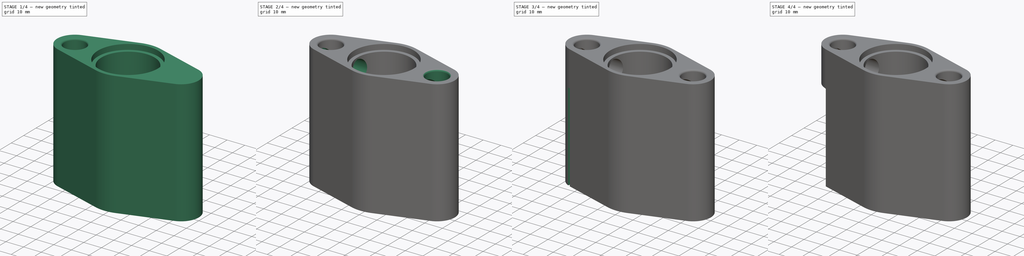
[diagram: build sequence overview — one tinted view per stage of 4, left to right]
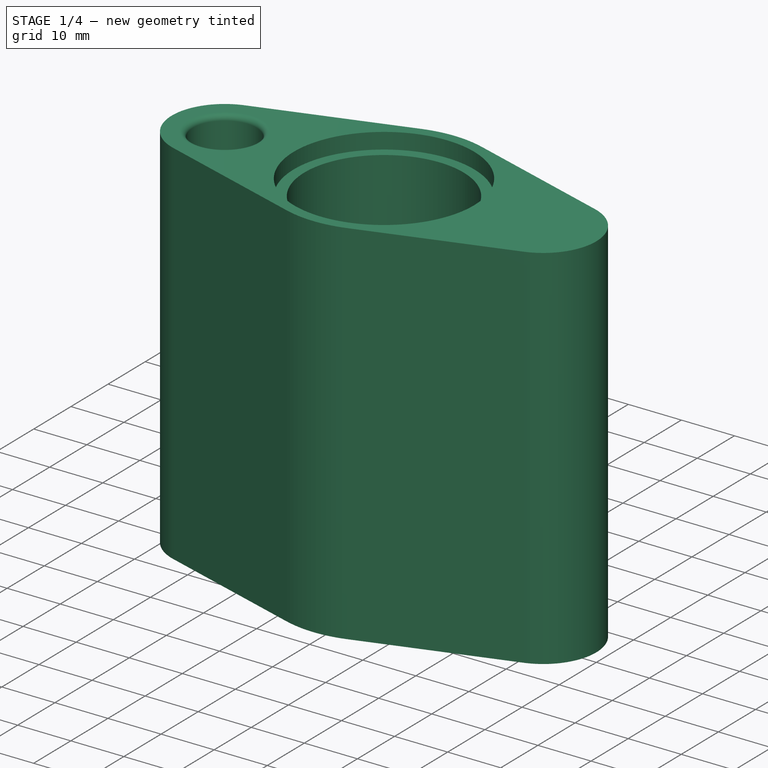
[diagram: stage 1 of 4 — iso view after this stage's code; geometry added in this stage tinted green]
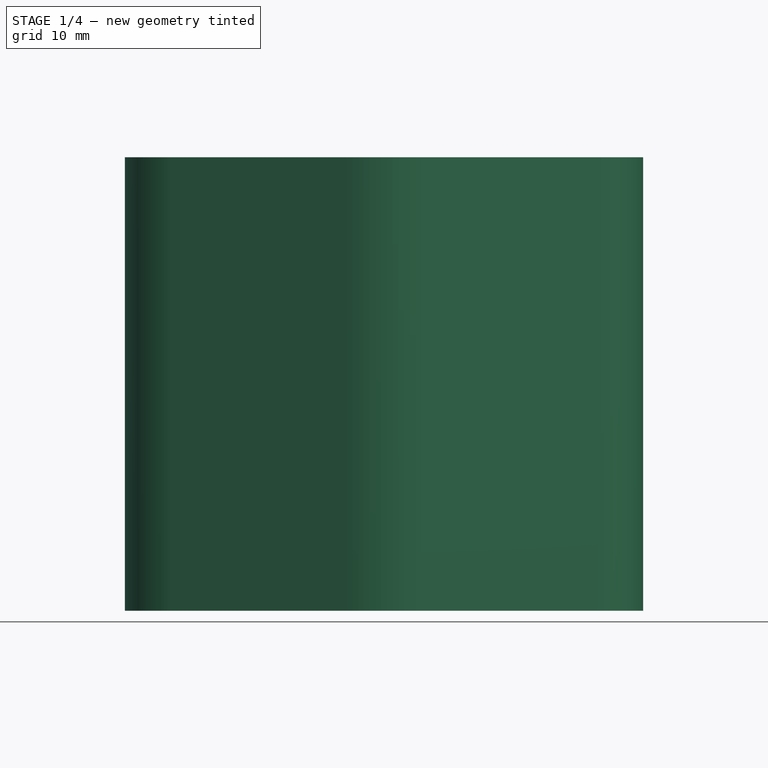
[diagram: stage 1 of 4 — front view after this stage's code; geometry added in this stage tinted green]
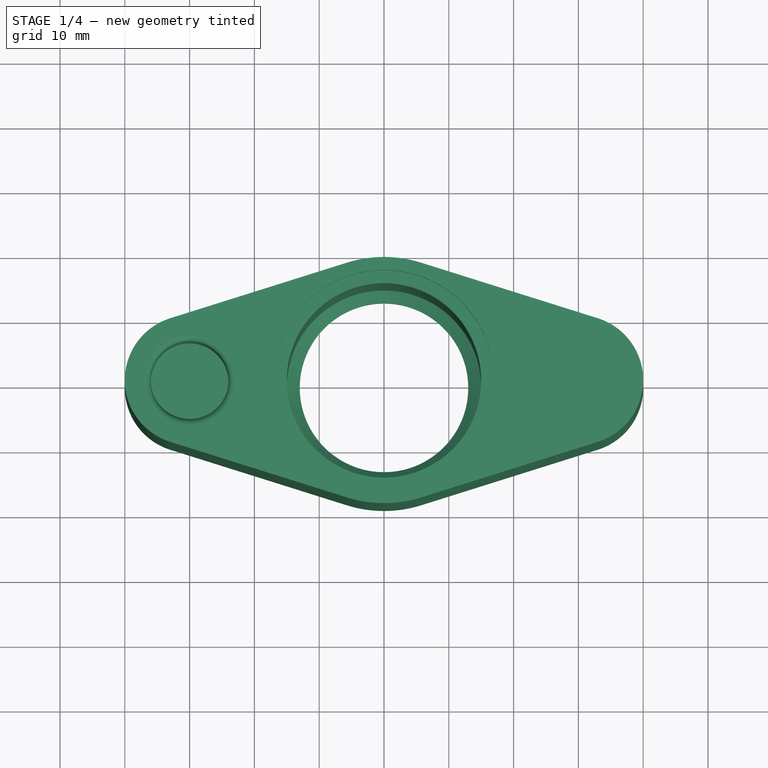
[diagram: stage 1 of 4 — top view after this stage's code; geometry added in this stage tinted green]
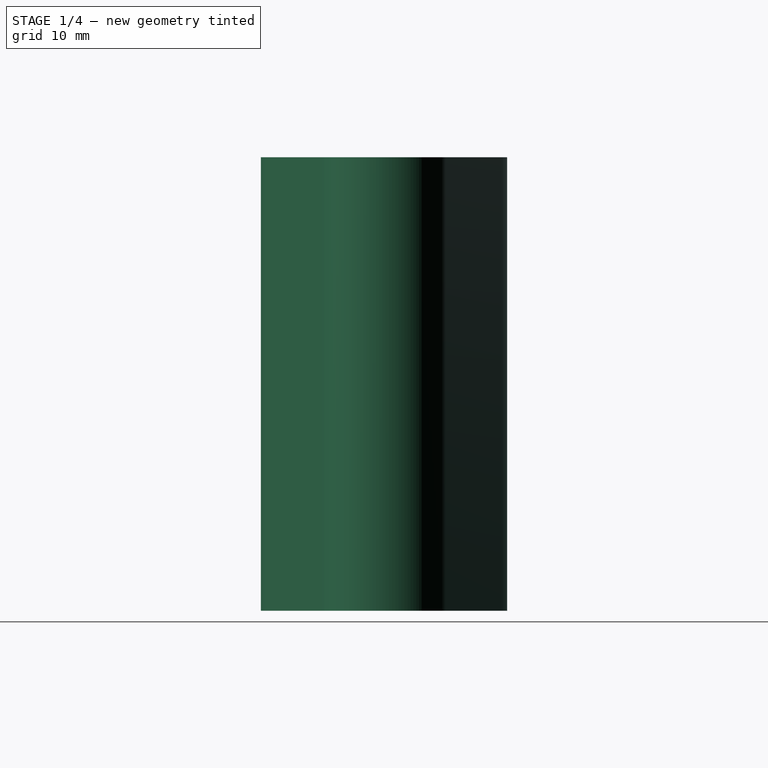
[diagram: stage 1 of 4 — right view after this stage's code; geometry added in this stage tinted green]
FCSTD DOCUMENT  (FreeCAD 0.19R24291 (Git))
Label: _Padlock
License: Creative Commons Attribution
LicenseURL: http://creativecommons.org/licenses/by/4.0/
objects: Sketcher::SketchObject×8, Part::Feature×7, PartDesign::Pocket×4, PartDesign::Groove×3, PartDesign::Chamfer×2, PartDesign::Pad×1, PartDesign::LinearPattern×1, PartDesign::Body×1
note: 37 computed .brp shape members not serialized (recipe doc carries the construction recipe); baked Part::Feature solids carry a one-line shape summary decoded from their .brp

FEATURE [Part::Feature] Body001_solid  label="Body (Solid)"
  shape: bbox 79.93 x 38 x 70 mm, 4696 faces (baked)
FEATURE [Part::Feature] Lock_Pin001_solid  label="Lock_Pin_001"
  Placement = pos=(-9.4,0,60) rot=(0,-1,0;1.5708rad)
  shape: bbox 18.5 x 10.97 x 18 mm, 1020 faces (baked)
FEATURE [Part::Feature] Lock_Pin001_solid001  label="Lock_Pin_002"
  Placement = pos=(9.4,-2e-15,60) rot=(0.707107,0,0.707107;3.14159rad)
  shape: bbox 18.5 x 10.97 x 18 mm, 1020 faces (baked)
FEATURE [Part::Feature] Plug_Autolock001_solid  label="Plug_Autolock"
  Placement = pos=(0,0,0) rot=(0,0,-1;1.5708rad)
  shape: bbox 28.5 x 28.42 x 54 mm, 2278 faces (baked)
FEATURE [Part::Feature] Lock001_solid  label="Lock001 (Solid)"
  Placement = pos=(0,5.5,78.5) rot=(1,0,0;1.5708rad)
  shape: bbox 70.87 x 11 x 100.4 mm, 1836 faces (baked)
FEATURE [Part::Feature] Lid001001__Meshed_001_solid  label="Lid (Solid)"
  Placement = pos=(0,9e-15,70) rot=(1,0,0;3.14159rad)
  shape: bbox 32.94 x 33 x 10 mm, 7662 faces (baked)
FEATURE [Part::Feature] Top001_solid  label="Top"
  Placement = pos=(-29.7,-7e-15,0) rot=(0,0,1;1.5708rad)
  shape: bbox 14.27 x 29.58 x 50 mm, 294 faces (baked)
FEATURE [Sketcher::SketchObject] Sketch
  FullyConstrained = true
  MapMode = 5
  Support = -> [XY_Plane]
  sketch-geometry (8):
    g0: LineSegment StartX=-33 StartY=9.53939 StartZ=0 EndX=-5.7 EndY=18.1248 EndZ=0
    g1: ArcOfCircle CenterX=0 CenterY=0 CenterZ=0 NormalX=0 NormalY=0 NormalZ=1 AngleXU=0 Radius=19 StartAngle=1.2661 EndAngle=1.87549
    g2: LineSegment StartX=5.7 StartY=18.1248 StartZ=0 EndX=33 EndY=9.53939 EndZ=0
    g3: ArcOfCircle CenterX=30 CenterY=0 CenterZ=0 NormalX=0 NormalY=0 NormalZ=1 AngleXU=0 Radius=10 StartAngle=5.01708 EndAngle=7.54929
    g4: LineSegment StartX=33 StartY=-9.53939 StartZ=0 EndX=5.7 EndY=-18.1248 EndZ=0
    g5: ArcOfCircle CenterX=0 CenterY=0 CenterZ=0 NormalX=0 NormalY=0 NormalZ=1 AngleXU=0 Radius=19 StartAngle=4.4077 EndAngle=5.01708
    g6: LineSegment StartX=-5.7 StartY=-18.1248 StartZ=0 EndX=-33 EndY=-9.53939 EndZ=0
    g7: ArcOfCircle CenterX=-30 CenterY=0 CenterZ=0 NormalX=0 NormalY=0 NormalZ=1 AngleXU=0 Radius=10 StartAngle=1.87549 EndAngle=4.4077
  constraints (18):
    c: Tangent(g0,g1) = 1.5708
    c: Tangent(g1,g2) = 1.5708
    c: Tangent(g2,g3) = 1.5708
    c: Tangent(g3,g4) = 1.5708
    c: Tangent(g4,g5) = 1.5708
    c: Tangent(g5,g6) = 1.5708
    c: Tangent(g6,g7) = 1.5708
    c: Coincident(g7,g0)
    c: Tangent(g0,g7)
    c: Coincident(g5,g-1)
    c: Coincident(g1,g5)
    c: Symmetric(g3,g7,g-2)
    c: PointOnObject(g3,g-1)
    c: Equal(g3,g7)
    c: Equal(g5,g1)
    c: Radius(g3) = 10
    c: Radius(g1) = 19
    c: DistanceX(g7,g3) = 60
FEATURE [PartDesign::Pad] Pad  label="BaseBody"
  AllowMultiFace = false
  Direction = (1,1,1)
  Length = 70
  Length2 = 100
  Profile = -> Sketch
  Type = 0
FEATURE [Sketcher::SketchObject] Sketch001
  FullyConstrained = true
  MapMode = 5
  Placement = pos=(0,0,0) rot=(1,0,0;1.5708rad)
  Support = -> [XZ_Plane]
  expr: Constraints[2] = Pad.Length
  sketch-geometry (7):
    g0: LineSegment StartX=0 StartY=70 StartZ=0 EndX=17 EndY=70 EndZ=0
    g1: LineSegment StartX=17 StartY=67 StartZ=0 EndX=15 EndY=67 EndZ=0
    g2: LineSegment StartX=15 StartY=67 StartZ=0 EndX=15 EndY=2 EndZ=0
    g3: LineSegment StartX=15 StartY=2 StartZ=0 EndX=13 EndY=0 EndZ=0
    g4: LineSegment StartX=13 StartY=0 StartZ=0 EndX=0 EndY=0 EndZ=0
    g5: LineSegment StartX=0 StartY=0 StartZ=0 EndX=0 EndY=70 EndZ=0
    g6: LineSegment StartX=17 StartY=67 StartZ=0 EndX=17 EndY=70 EndZ=0
  constraints (20):
    c: PointOnObject(g0,g-2)
    c: Horizontal(g0)
    c: DistanceY(g-1,g0) = 70
    c: Horizontal(g1)
    c: Coincident(g1,g2)
    c: Vertical(g2)
    c: Coincident(g2,g3)
    c: PointOnObject(g3,g-1)
    c: Coincident(g3,g4)
    c: Coincident(g4,g-1)
    c: Coincident(g4,g5)
    c: Coincident(g5,g0)
    c: DistanceY(g1,g0) = 3
    c: DistanceX(g0,g1) = 17
    c: Vertical(g6)
    c: Angle(g3,g4) = 2.35619
    c: DistanceY(g3,g2) = 2
    c: DistanceX(g4,g2) = 15
    c: Coincident(g6,g1)
    c: Coincident(g6,g0)
FEATURE [PartDesign::Groove] Groove  label="CentralBore"
  AllowMultiFace = false
  Angle = 360
  Axis = (0,-2e-16,1)
  Base = (0,0,0)
  BaseFeature = -> Pad
  Profile = -> Sketch001
  ReferenceAxis = -> Sketch001 [V_Axis]
FEATURE [Sketcher::SketchObject] Sketch002
  FullyConstrained = true
  MapMode = 5
  Placement = pos=(0,0,0) rot=(1,0,0;1.5708rad)
  Support = -> [XZ_Plane]
  expr: Constraints[7] = Sketch.Constraints[17] / 2
  expr: Constraints[6] = Pad.Length
  sketch-geometry (5):
    g0: LineSegment StartX=-30 StartY=70 StartZ=0 EndX=-30 EndY=50 EndZ=0
    g1: LineSegment StartX=-30 StartY=50 StartZ=0 EndX=-24 EndY=50 EndZ=0
    g2: LineSegment StartX=-24 StartY=50 StartZ=0 EndX=-24 EndY=69 EndZ=0
    g3: ArcOfCircle CenterX=-23 CenterY=69 CenterZ=0 NormalX=0 NormalY=0 NormalZ=1 AngleXU=0 Radius=1 StartAngle=1.5708 EndAngle=3.14159
    g4: LineSegment StartX=-23 StartY=70 StartZ=0 EndX=-30 EndY=70 EndZ=0
  constraints (14):
    c: Vertical(g0)
    c: Coincident(g0,g1)
    c: Coincident(g1,g2)
    c: Vertical(g2)
    c: Tangent(g2,g3) = 1.5708
    c: Coincident(g4,g0)
    c: DistanceY(g-1,g0) = 70
    c: DistanceX(g0,g-1) = 30
    c: Horizontal(g1)
    c: DistanceY(g0,g0) = 20
    c: Tangent(g3,g4) = -1.5708
    c: Horizontal(g4)
    c: DistanceX(g0,g2) = 6
    c: Radius(g3) = 1
FEATURE [PartDesign::Groove] Groove001  label="ShakleBoreShort"
  AllowMultiFace = false
  Angle = 360
  Axis = (0,2e-16,-1)
  Base = (-30,-1.55e-14,70)
  BaseFeature = -> Groove
  Profile = -> Sketch002
  ReferenceAxis = -> Sketch002 [Edge1]
  Reversed = true
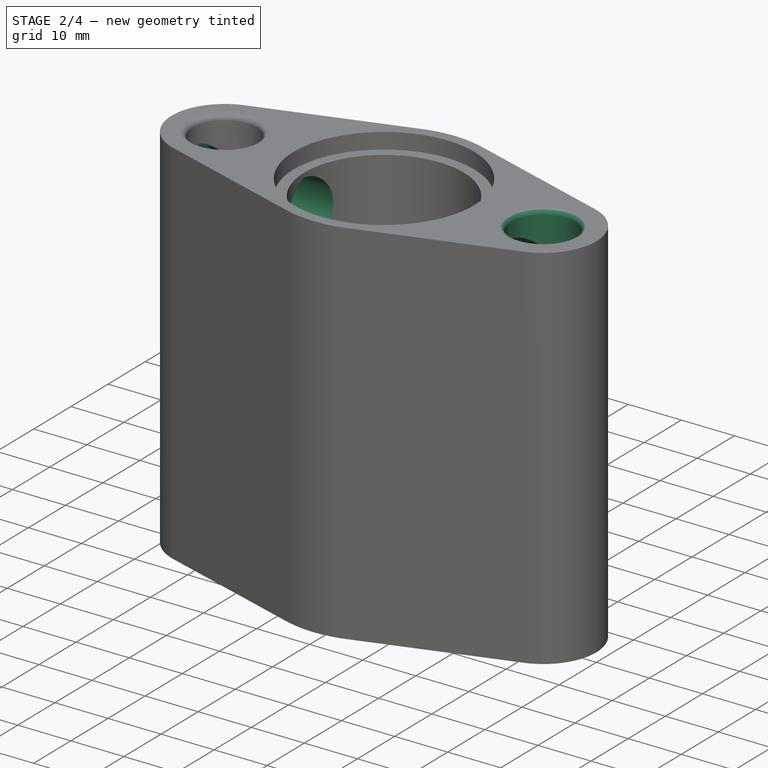
[diagram: stage 2 of 4 — iso view after this stage's code; geometry added in this stage tinted green]
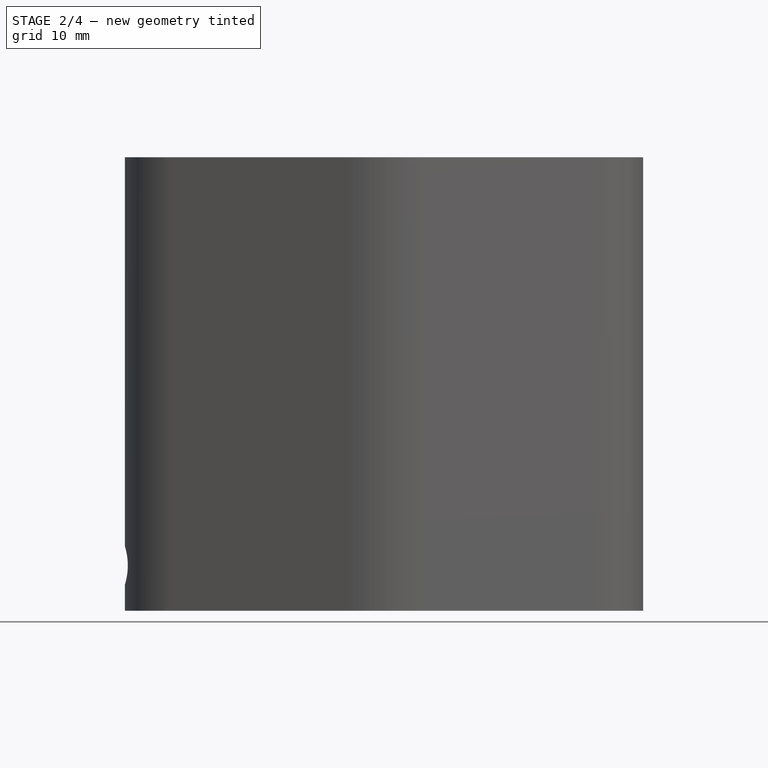
[diagram: stage 2 of 4 — front view after this stage's code; geometry added in this stage tinted green]
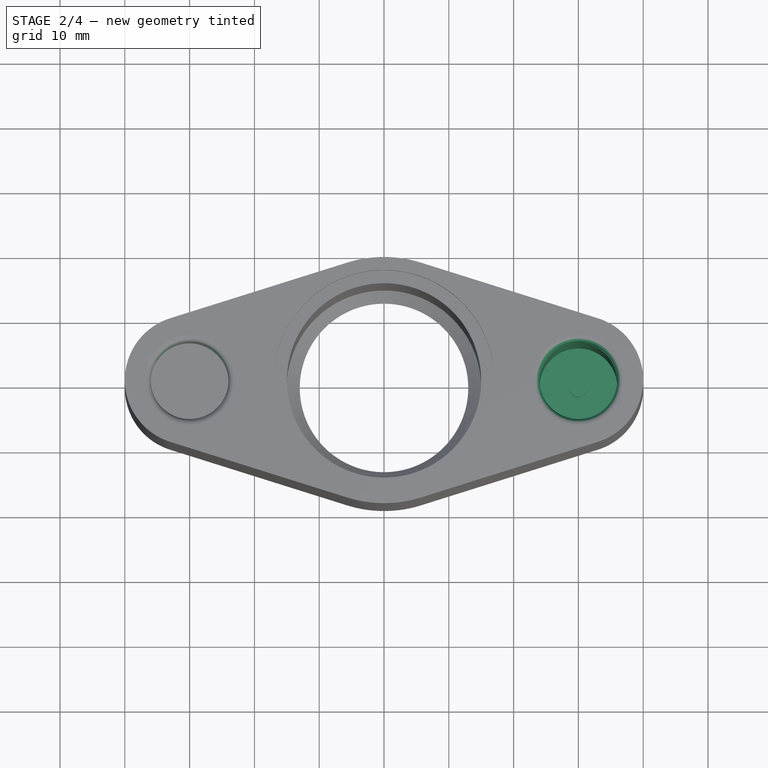
[diagram: stage 2 of 4 — top view after this stage's code; geometry added in this stage tinted green]
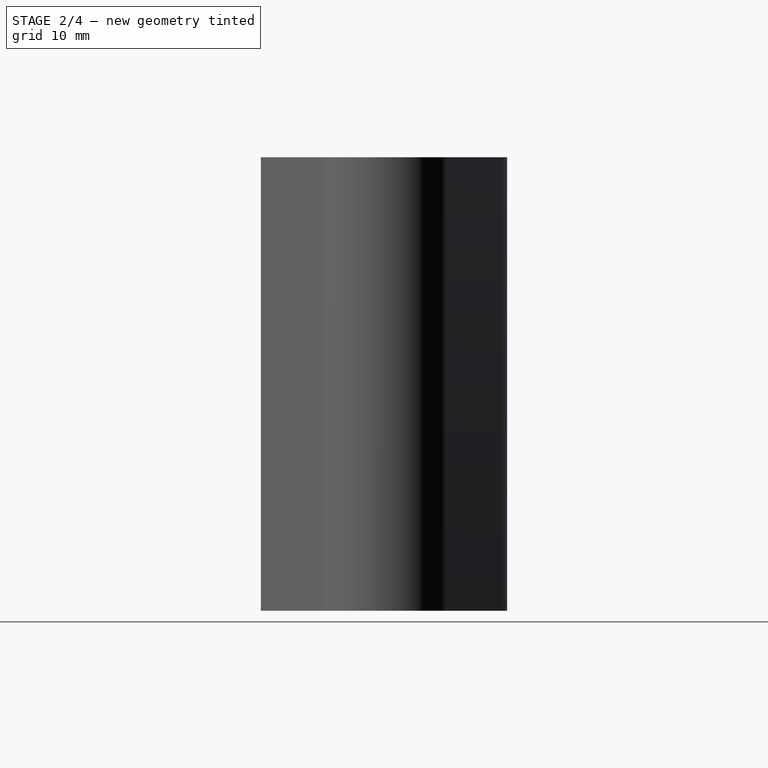
[diagram: stage 2 of 4 — right view after this stage's code; geometry added in this stage tinted green]
FEATURE [Sketcher::SketchObject] Sketch003
  FullyConstrained = true
  MapMode = 5
  Placement = pos=(0,0,0) rot=(1,0,0;1.5708rad)
  Support = -> [XZ_Plane]
  expr: Constraints[16] = Pad.Length
  expr: Constraints[15] = Sketch.Constraints[17] / 2
  sketch-geometry (7):
    g0: LineSegment StartX=36 StartY=69 StartZ=0 EndX=36 EndY=5 EndZ=0
    g1: LineSegment StartX=36 StartY=5 StartZ=0 EndX=31.5 EndY=5 EndZ=0
    g2: LineSegment StartX=31.5 StartY=5 StartZ=0 EndX=31.5 EndY=8 EndZ=0
    g3: LineSegment StartX=31.5 StartY=8 StartZ=0 EndX=30 EndY=8 EndZ=0
    g4: LineSegment StartX=30 StartY=8 StartZ=0 EndX=30 EndY=70 EndZ=0
    g5: LineSegment StartX=30 StartY=70 StartZ=0 EndX=37 EndY=70 EndZ=0
    g6: ArcOfCircle CenterX=37 CenterY=69 CenterZ=0 NormalX=0 NormalY=0 NormalZ=1 AngleXU=0 Radius=1 StartAngle=1.5708 EndAngle=3.14159
  constraints (22):
    c: Vertical(g0)
    c: Coincident(g0,g1)
    c: Horizontal(g1)
    c: Coincident(g1,g2)
    c: Vertical(g2)
    c: Coincident(g2,g3)
    c: Horizontal(g3)
    c: Coincident(g3,g4)
    c: Vertical(g4)
    c: Coincident(g4,g5)
    c: Horizontal(g5)
    c: Coincident(g6,g5)
    c: Coincident(g6,g0)
    c: Tangent(g6,g5)
    c: Tangent(g6,g0)
    c: DistanceX(g-1,g4) = 30
    c: DistanceY(g-1,g4) = 70
    c: Radius(g6) = 1
    c: DistanceX(g3,g0) = 6
    c: DistanceY(g2,g2) = 3
    c: DistanceX(g3,g1) = 1.5
    c: DistanceY(g0,g5) = 65
FEATURE [PartDesign::Groove] Groove002  label="ShakleBoreLong"
  AllowMultiFace = false
  Angle = 360
  Axis = (0,-2e-16,1)
  Base = (30,-1.8e-15,8)
  BaseFeature = -> Groove001
  Profile = -> Sketch003
  ReferenceAxis = -> Sketch003 [Edge5]
FEATURE [Sketcher::SketchObject] Sketch004
  FullyConstrained = true
  MapMode = 5
  Placement = pos=(0,0,0) rot=(0.57735,0.57735,0.57735;2.0944rad)
  Support = -> [YZ_Plane]
  expr: Constraints[18] = Constraints[6]
  expr: Constraints[17] = Constraints[1] / 2 + Constraints[6] / 2
  expr: Constraints[5] = Constraints[1] / 2 + Constraints[6] / 2
  sketch-geometry (6):
    g0: ArcOfCircle CenterX=0 CenterY=60 CenterZ=0 NormalX=0 NormalY=0 NormalZ=1 AngleXU=0 Radius=5.999 StartAngle=1.82974 EndAngle=4.45345
    g1: LineSegment StartX=0 StartY=66.199 StartZ=0 EndX=-1.5361 EndY=65.799 EndZ=0
    g2: LineSegment StartX=0 StartY=66.199 StartZ=0 EndX=1.5361 EndY=65.799 EndZ=0
    g3: LineSegment StartX=0 StartY=53.801 StartZ=0 EndX=-1.5361 EndY=54.201 EndZ=0
    g4: LineSegment StartX=0 StartY=53.801 StartZ=0 EndX=1.5361 EndY=54.201 EndZ=0
    g5: ArcOfCircle CenterX=0 CenterY=60 CenterZ=0 NormalX=0 NormalY=0 NormalZ=1 AngleXU=0 Radius=5.999 StartAngle=4.97133 EndAngle=7.59504
  constraints (19):
    c: PointOnObject(g0,g-2)
    c: Diameter(g0) = 11.998
    c: DistanceY(g-1,g0) = 60
    c: PointOnObject(g1,g-2)
    c: Coincident(g2,g1)
    c: DistanceY(g0,g1) = 6.199
    c: DistanceY(g2,g1) = 0.4
    c: Coincident(g5,g2)
    c: Coincident(g0,g1)
    c: Equal(g2,g1)
    c: PointOnObject(g3,g-2)
    c: Coincident(g4,g3)
    c: Equal(g3,g4)
    c: Equal(g0,g5)
    c: Coincident(g0,g3)
    c: Coincident(g5,g4)
    c: Coincident(g0,g5)
    c: DistanceY(g3,g0) = 6.199
    c: DistanceY(g3,g4) = 0.4
FEATURE [PartDesign::Pocket] Pocket  label="LockPinBore"
  AllowMultiFace = false
  BaseFeature = -> Groove002
  Length = 72
  Length2 = 100
  Midplane = true
  Profile = -> Sketch004
  Type = 0
FEATURE [Sketcher::SketchObject] Sketch005
  FullyConstrained = true
  MapMode = 5
  Placement = pos=(0,0,0) rot=(0.57735,0.57735,0.57735;2.0944rad)
  Support = -> [YZ_Plane]
  expr: Constraints[17] = Constraints[2] + Constraints[7]
  expr: Constraints[14] = Constraints[7]
  sketch-geometry (6):
    g0: ArcOfCircle CenterX=0 CenterY=7 CenterZ=0 NormalX=0 NormalY=0 NormalZ=1 AngleXU=0 Radius=3 StartAngle=1.938 EndAngle=4.34518
    g1: LineSegment StartX=0 StartY=10.2 StartZ=0 EndX=-1.07703 EndY=9.8 EndZ=0
    g2: LineSegment StartX=0 StartY=10.2 StartZ=0 EndX=1.07703 EndY=9.8 EndZ=0
    g3: LineSegment StartX=0 StartY=3.8 StartZ=0 EndX=-1.07703 EndY=4.2 EndZ=0
    g4: LineSegment StartX=0 StartY=3.8 StartZ=0 EndX=1.07703 EndY=4.2 EndZ=0
    g5: ArcOfCircle CenterX=0 CenterY=7 CenterZ=0 NormalX=0 NormalY=0 NormalZ=1 AngleXU=0 Radius=3 StartAngle=5.0796 EndAngle=7.48677
  constraints (19):
    c: DistanceY(g-1,g0) = 7
    c: PointOnObject(g0,g-2)
    c: Diameter(g0) = 6
    c: Coincident(g2,g1)
    c: Coincident(g4,g3)
    c: PointOnObject(g4,g0)
    c: Symmetric(g3,g1,g0)
    c: DistanceY(g2,g1) = 0.4
    c: Coincident(g5,g2)
    c: Coincident(g0,g1)
    c: Equal(g0,g5)
    c: Coincident(g0,g3)
    c: Coincident(g0,g5)
    c: PointOnObject(g5,g4)
    c: DistanceY(g3,g4) = 0.4
    c: Equal(g3,g4)
    c: Equal(g2,g1)
    c: DistanceY(g3,g1) = 6.4
    c: PointOnObject(g3,g-2)
FEATURE [PartDesign::Pocket] Pocket001  label="KeyPinBore"
  AllowMultiFace = false
  BaseFeature = -> Pocket
  Length = 19
  Length2 = 100
  Profile = -> Sketch005
  Type = 1
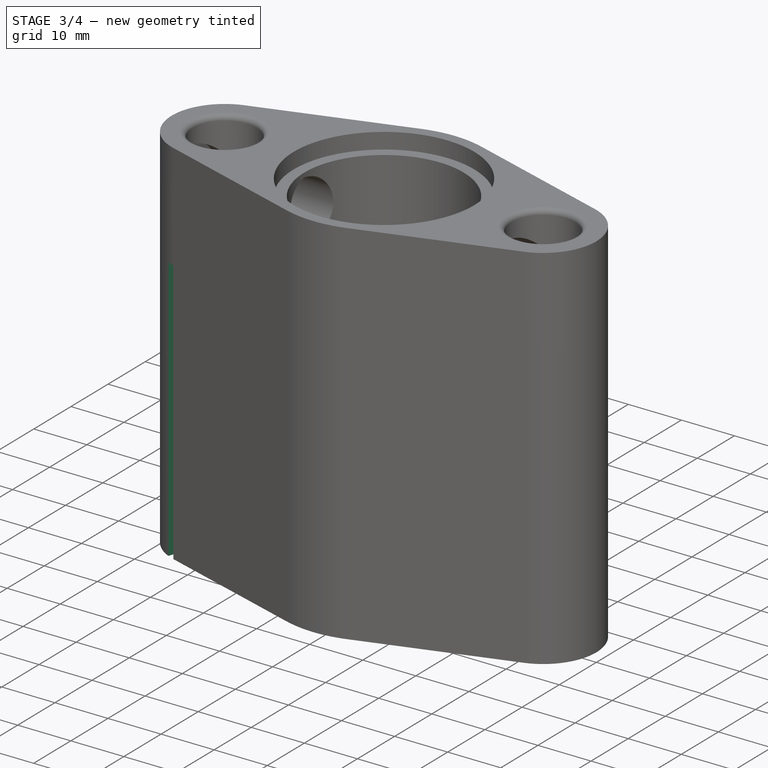
[diagram: stage 3 of 4 — iso view after this stage's code; geometry added in this stage tinted green]
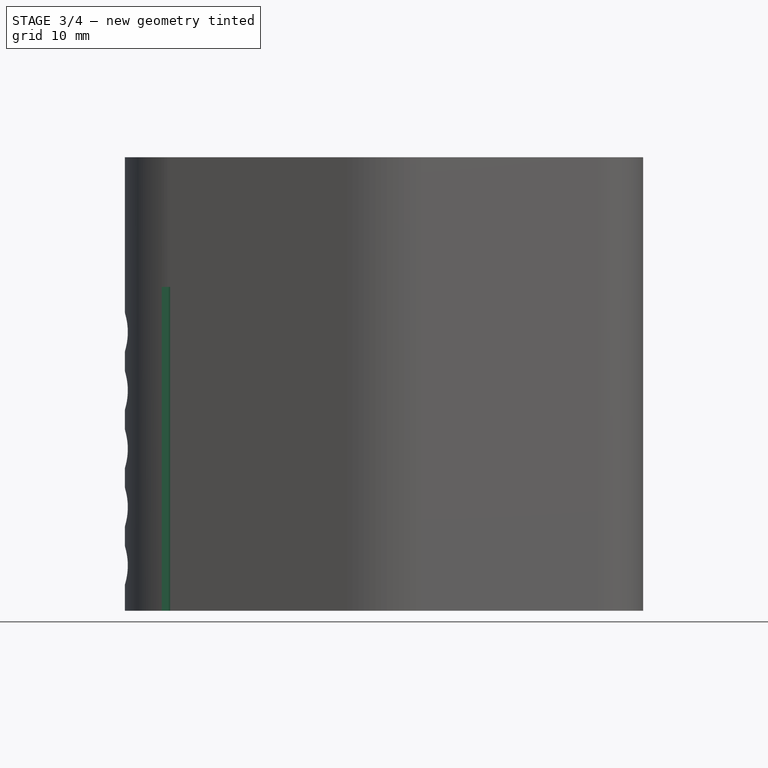
[diagram: stage 3 of 4 — front view after this stage's code; geometry added in this stage tinted green]
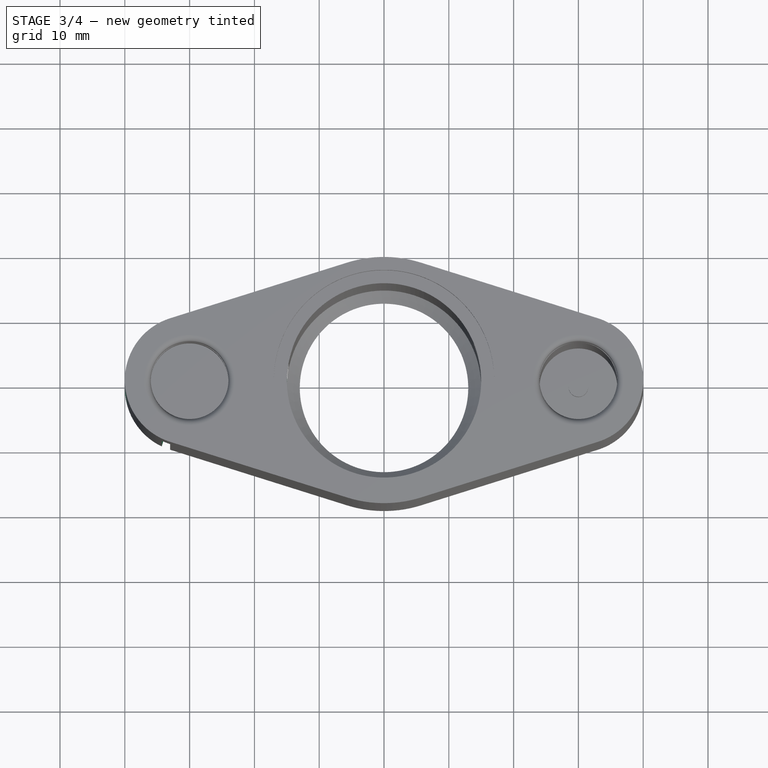
[diagram: stage 3 of 4 — top view after this stage's code; geometry added in this stage tinted green]
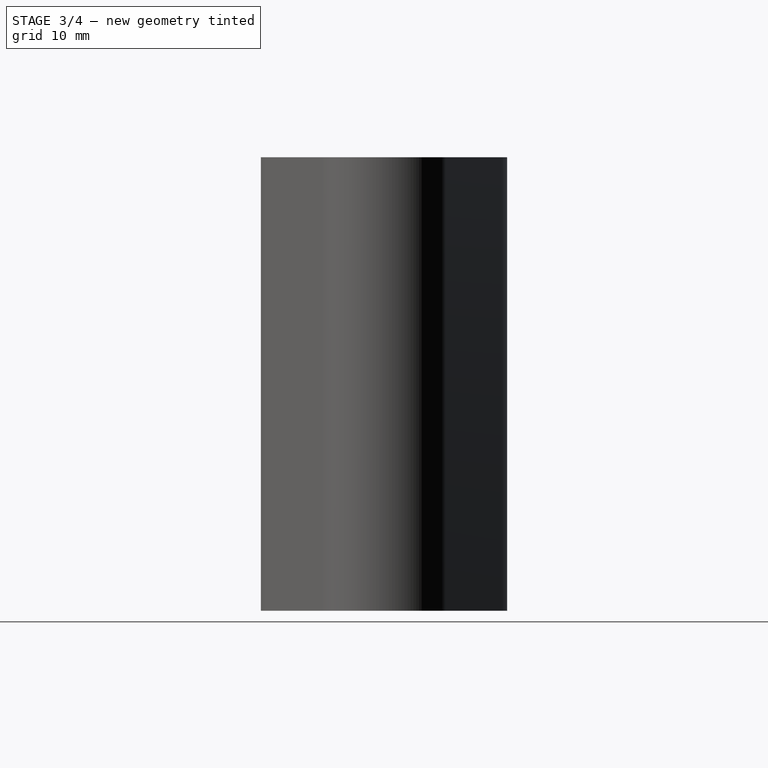
[diagram: stage 3 of 4 — right view after this stage's code; geometry added in this stage tinted green]
FEATURE [Sketcher::SketchObject] Sketch006
  FullyConstrained = true
  MapMode = 5
  Support = -> [XY_Plane]
  sketch-geometry (16):
    g0: LineSegment StartX=-42 StartY=10 StartZ=0 EndX=-42 EndY=-10 EndZ=0
    g1: LineSegment StartX=-42 StartY=-10 StartZ=0 EndX=-33.1449 EndY=-10 EndZ=0
    g2: LineSegment StartX=-33.1449 StartY=-10 StartZ=0 EndX=-31.8869 EndY=-6 EndZ=0
    g3: LineSegment StartX=-31.8869 StartY=-6 StartZ=0 EndX=-33.2225 EndY=-5.57999 EndZ=0
    g4: LineSegment StartX=-33.2225 StartY=-5.57999 StartZ=0 EndX=-34.3363 EndY=-9.12176 EndZ=0
    g5: ArcOfCircle CenterX=-30 CenterY=0 CenterZ=0 NormalX=0 NormalY=0 NormalZ=1 AngleXU=0 Radius=10.1 StartAngle=2.01455 EndAngle=4.26863
    g6: LineSegment StartX=-34.3363 StartY=9.12176 StartZ=0 EndX=-33.2225 EndY=5.57999 EndZ=0
    g7: LineSegment StartX=-33.2225 StartY=5.57999 StartZ=0 EndX=-31.8869 EndY=6 EndZ=0
    g8: LineSegment StartX=-31.8869 StartY=6 StartZ=0 EndX=-33.1449 EndY=10 EndZ=0
    g9: LineSegment StartX=-33.1449 StartY=10 StartZ=0 EndX=-42 EndY=10 EndZ=0
    g10: LineSegment StartX=-30 StartY=0 StartZ=0 EndX=-33 EndY=9.53938 EndZ=0
    g11: LineSegment StartX=-30 StartY=0 StartZ=0 EndX=-33 EndY=-9.53938 EndZ=0
    g12: ArcOfCircle CenterX=-30 CenterY=0 CenterZ=0 NormalX=0 NormalY=0 NormalZ=1 AngleXU=0 Radius=10 StartAngle=1.87549 EndAngle=4.40769
    g13: Circle CenterX=0 CenterY=0 CenterZ=0 NormalX=0 NormalY=0 NormalZ=1 AngleXU=0 Radius=19
    g14: LineSegment StartX=-33 StartY=9.53938 StartZ=0 EndX=-5.7 EndY=18.1248 EndZ=0
    g15: LineSegment StartX=-33 StartY=-9.53938 StartZ=0 EndX=-5.7 EndY=-18.1248 EndZ=0
  constraints (45):
    c: Coincident(g0,g1)
    c: Horizontal(g1)
    c: Coincident(g1,g2)
    c: Coincident(g2,g3)
    c: Coincident(g3,g4)
    c: Coincident(g6,g7)
    c: Coincident(g7,g8)
    c: Coincident(g8,g9)
    c: Coincident(g9,g0)
    c: Horizontal(g9)
    c: Symmetric(g0,g0,g-1)
    c: Symmetric(g2,g7,g-1)
    c: DistanceX(g5,g-1) = 30
    c: PointOnObject(g5,g-1)
    c: Equal(g3,g7)
    c: Coincident(g10,g5)
    c: Coincident(g11,g5)
    c: Coincident(g12,g5)
    c: Coincident(g13,g-1)
    c: Diameter(g13) = 38
    c: Coincident(g14,g12)
    c: PointOnObject(g14,g13)
    c: Coincident(g15,g12)
    c: PointOnObject(g15,g13)
    c: Tangent(g13,g15)
    c: Tangent(g13,g14)
    c: Tangent(g14,g12)
    c: Tangent(g15,g12)
    c: Radius(g12) = 10
    c: Coincident(g11,g12)
    c: Coincident(g10,g12)
    c: PointOnObject(g2,g11)
    c: PointOnObject(g11,g2)
    c: PointOnObject(g10,g8)
    c: Parallel(g2,g4)
    c: Parallel(g8,g6)
    c: DistanceY(g0,g0) = 20
    c: DistanceY(g2,g7) = 12
    c: Radius(g5) = 10.1
    c: DistanceX(g0,g5) = 12
    c: Coincident(g6,g5)
    c: Coincident(g4,g5)
    c: Perpendicular(g7,g8)
    c: Perpendicular(g3,g2)
    c: Distance(g3) = 1.4
FEATURE [Sketcher::SketchObject] Sketch007
  FullyConstrained = true
  MapMode = 5
  Support = -> [XY_Plane]
  sketch-geometry (12):
    g0: LineSegment StartX=-42 StartY=10 StartZ=0 EndX=-42 EndY=-10 EndZ=0
    g1: LineSegment StartX=-42 StartY=-10 StartZ=0 EndX=-33.1449 EndY=-10 EndZ=0
    g2: LineSegment StartX=-33.1449 StartY=-10 StartZ=0 EndX=-32.34 EndY=-7.44072 EndZ=0
    g3: ArcOfCircle CenterX=-30 CenterY=0 CenterZ=0 NormalX=0 NormalY=0 NormalZ=1 AngleXU=0 Radius=7.8 StartAngle=1.87549 EndAngle=4.40769
    g4: LineSegment StartX=-32.34 StartY=7.44073 StartZ=0 EndX=-33.1448 EndY=10 EndZ=0
    g5: LineSegment StartX=-33.1448 StartY=10 StartZ=0 EndX=-42 EndY=10 EndZ=0
    g6: LineSegment StartX=-30 StartY=0 StartZ=0 EndX=-33 EndY=9.53939 EndZ=0
    g7: LineSegment StartX=-30 StartY=0 StartZ=0 EndX=-33 EndY=-9.53938 EndZ=0
    g8: ArcOfCircle CenterX=-30 CenterY=0 CenterZ=0 NormalX=0 NormalY=0 NormalZ=1 AngleXU=0 Radius=10 StartAngle=1.87549 EndAngle=4.40769
    g9: Circle CenterX=0 CenterY=0 CenterZ=0 NormalX=0 NormalY=0 NormalZ=1 AngleXU=0 Radius=19
    g10: LineSegment StartX=-33 StartY=9.53939 StartZ=0 EndX=-5.7 EndY=18.1248 EndZ=0
    g11: LineSegment StartX=-33 StartY=-9.53938 StartZ=0 EndX=-5.7 EndY=-18.1248 EndZ=0
  constraints (34):
    c: Coincident(g0,g1)
    c: Horizontal(g1)
    c: Coincident(g1,g2)
    c: Coincident(g4,g5)
    c: Coincident(g5,g0)
    c: Horizontal(g5)
    c: Symmetric(g0,g0,g-1)
    c: DistanceX(g3,g-1) = 30
    c: PointOnObject(g3,g-1)
    c: Coincident(g6,g3)
    c: Coincident(g7,g3)
    c: Coincident(g8,g3)
    c: Coincident(g9,g-1)
    c: Diameter(g9) = 38
    c: Coincident(g10,g8)
    c: PointOnObject(g10,g9)
    c: Coincident(g11,g8)
    c: PointOnObject(g11,g9)
    c: Tangent(g9,g11)
    c: Tangent(g9,g10)
    c: Tangent(g10,g8)
    c: Tangent(g11,g8)
    c: Radius(g8) = 10
    c: Coincident(g7,g8)
    c: Coincident(g6,g8)
    c: PointOnObject(g7,g2)
    c: PointOnObject(g6,g4)
    c: DistanceY(g0,g0) = 20
    c: Radius(g3) = 7.8
    c: DistanceX(g0,g3) = 12
    c: Coincident(g2,g3)
    c: Coincident(g4,g3)
    c: PointOnObject(g3,g6)
    c: PointOnObject(g2,g7)
FEATURE [PartDesign::LinearPattern] LinearPattern
  BaseFeature = -> Pocket001
  Direction = -> Sketch005 [V_Axis]
  Length = 36
  Occurrences = 5
  Originals = -> [Pocket001]
FEATURE [PartDesign::Pocket] Pocket002  label="LockPinCoverGuides"
  AllowMultiFace = false
  BaseFeature = -> LinearPattern
  Length = 49.99
  Length2 = 100
  Profile = -> Sketch006
  Reversed = true
  Type = 0
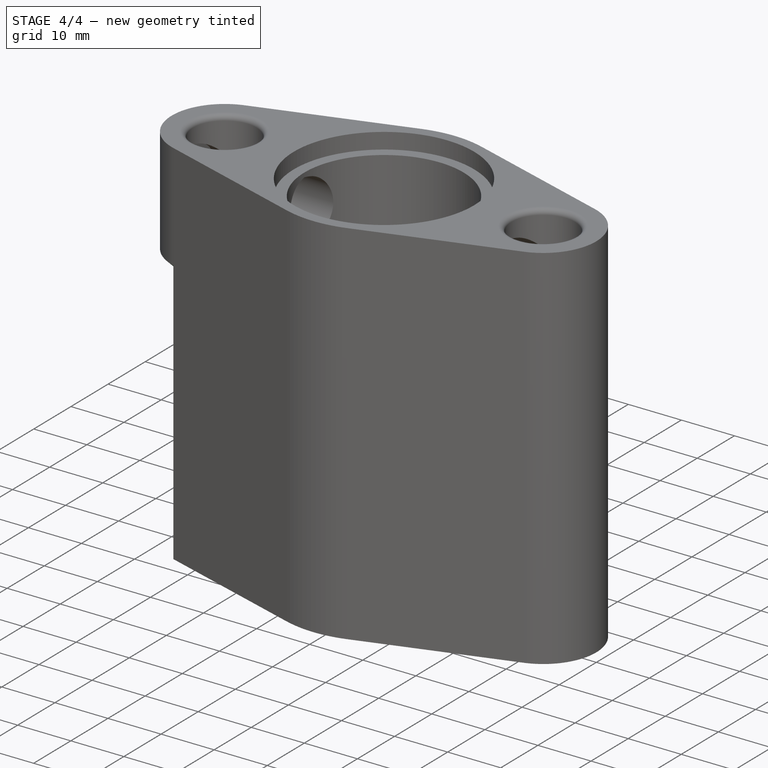
[diagram: stage 4 of 4 — iso view after this stage's code; geometry added in this stage tinted green]
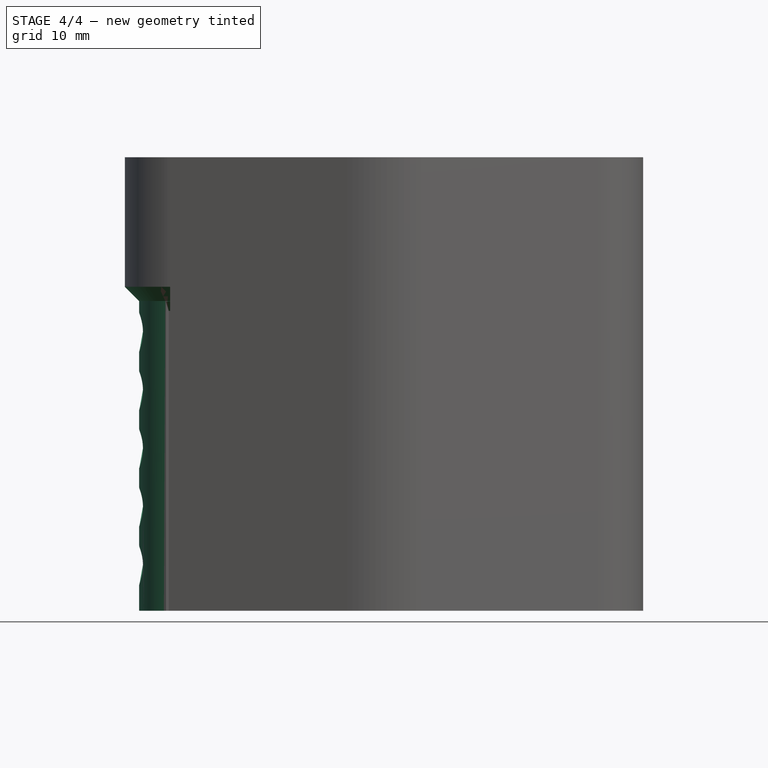
[diagram: stage 4 of 4 — front view after this stage's code; geometry added in this stage tinted green]
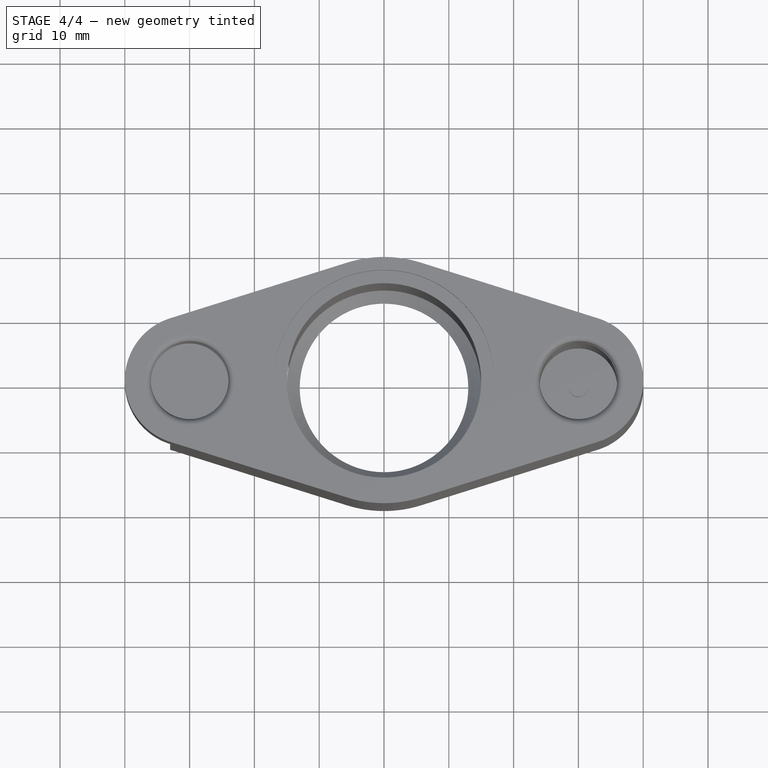
[diagram: stage 4 of 4 — top view after this stage's code; geometry added in this stage tinted green]
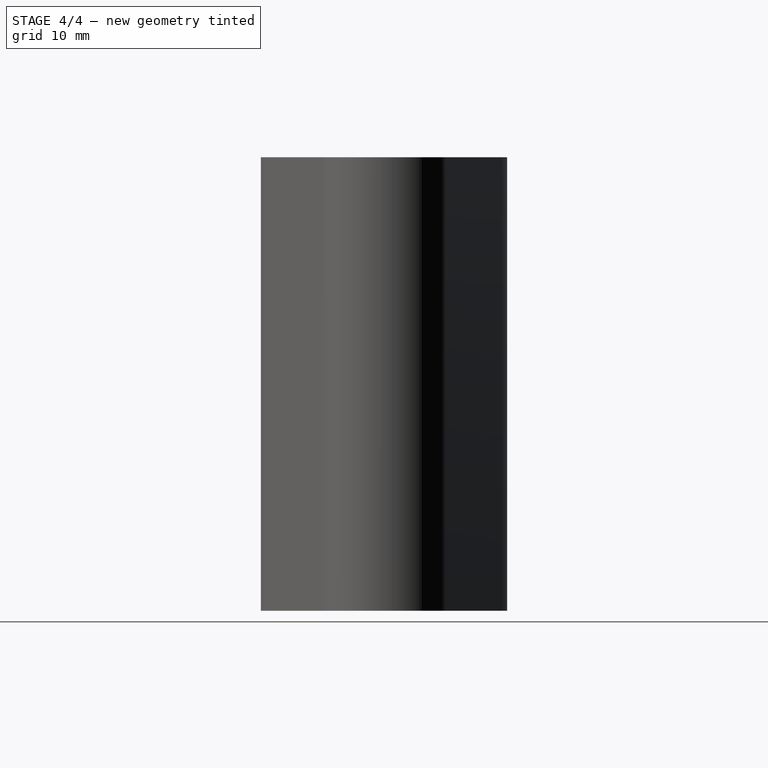
[diagram: stage 4 of 4 — right view after this stage's code; geometry added in this stage tinted green]
FEATURE [PartDesign::Chamfer] Chamfer
  Angle = 45
  Base = -> Pocket002 [Edge76,Edge81]
  BaseFeature = -> Pocket002
  ChamferType = 0
  FlipDirection = false
  Size = 3.7
  Size2 = 1
  SupportTransform = false
FEATURE [PartDesign::Pocket] Pocket003  label="LockPinCoverRecess"
  AllowMultiFace = false
  BaseFeature = -> Chamfer
  Length = 50
  Length2 = 100
  Profile = -> Sketch007
  Reversed = true
  Type = 0
FEATURE [PartDesign::Chamfer] Chamfer001
  Angle = 45
  Base = -> Pocket003 [Edge8]
  BaseFeature = -> Pocket003
  ChamferType = 0
  FlipDirection = false
  Size = 2.198
  Size2 = 1
  SupportTransform = false
FEATURE [PartDesign::Body] Body
  Group = -> [Sketch,Pad,Sketch001,Groove,Sketch002,Groove001,Sketch003,Groove002,Sketch004,Pocket,Sketch005,Pocket001,Sketch006,Sketch007,LinearPattern,Pocket002,Chamfer,Pocket003,Chamfer001]
  Origin = -> Origin
  Tip = -> Chamfer001
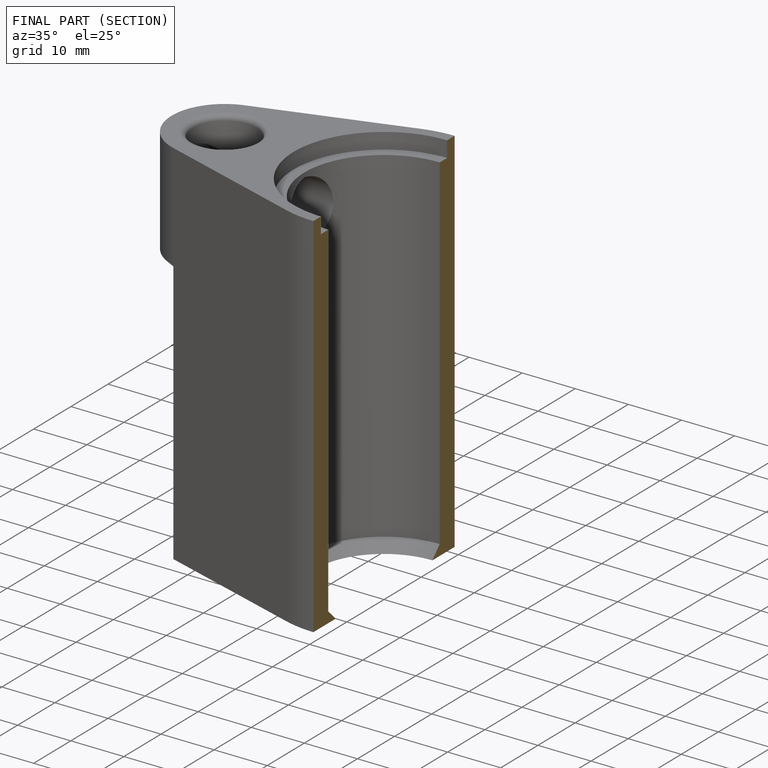
[diagram: finished part — half-section view (interior)]
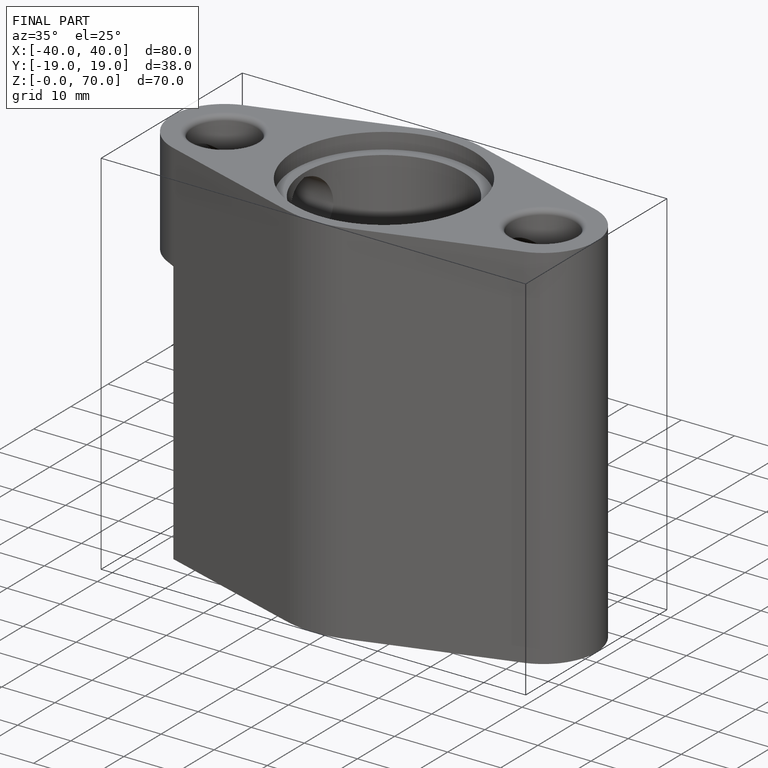
[diagram: finished part — iso view with bounding-box wireframe]
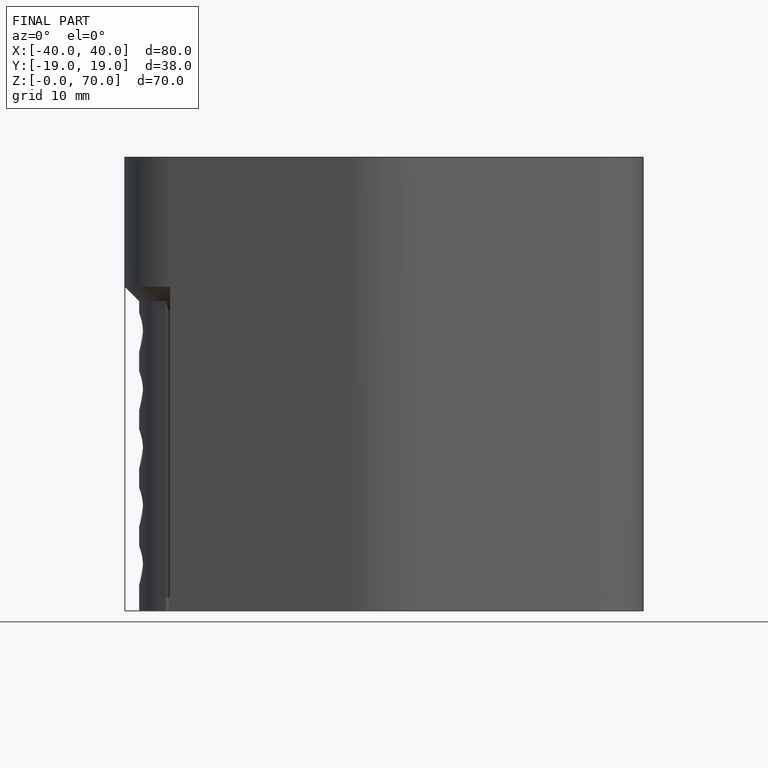
[diagram: finished part — front view with bounding-box wireframe]
